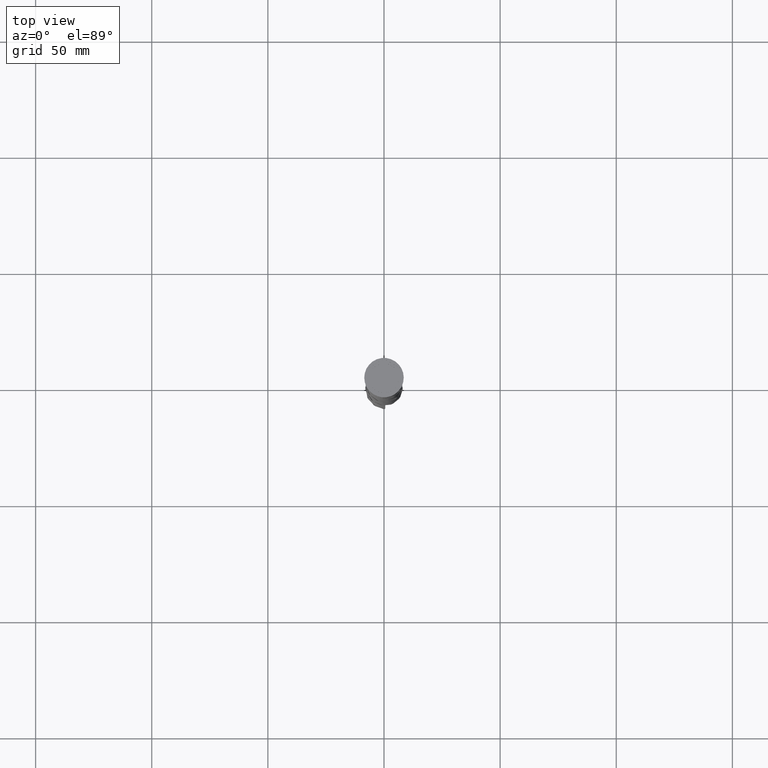
[diagram: clean part render]
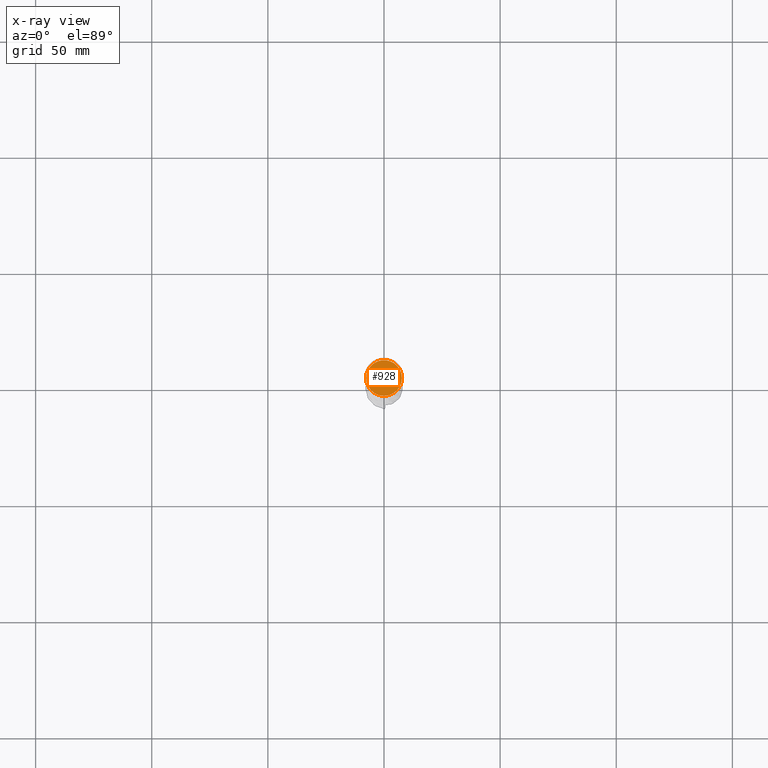
[diagram: x-ray — body ghosted, one internal face saturated and labeled with its STEP entity id]
A machine part, top view, then the same camera in x-ray: the body is ghosted and one INTERNAL B-rep face — a face not visible from any outside direction — is saturated and labeled: STEP entity #928.
In plain terms, the highlighted planar face has unit normal (0, 0, -1).
Its self-contained STEP definition (entity closure, byte-faithful):
#184 = DIRECTION ( 'NONE',  ( -1.000000000000000000, 0.000000000000000000, 0.000000000000000000 ) ) ;
#676 = DIRECTION ( 'NONE',  ( 0.000000000000000000, 0.000000000000000000, -1.000000000000000000 ) ) ;
#761 = CARTESIAN_POINT ( 'NONE',  ( 0.000000000000000000, 0.000000000000000000, -12.00000000000000000 ) ) ;
#807 = DIRECTION ( 'NONE',  ( -1.000000000000000000, 0.000000000000000000, 0.000000000000000000 ) ) ;
#852 = CARTESIAN_POINT ( 'NONE',  ( 0.000000000000000000, 0.000000000000000000, -12.00000000000000000 ) ) ;
#872 = CARTESIAN_POINT ( 'NONE',  ( 7.700000000000001954, 9.613477373306725302E-16, -12.00000000000000000 ) ) ;
#898 = CARTESIAN_POINT ( 'NONE',  ( -7.700000000000001954, 0.000000000000000000, -12.00000000000000000 ) ) ;
#928 = ADVANCED_FACE ( 'NONE', ( #3174 ), #3818, .F. ) ;
#1063 = AXIS2_PLACEMENT_3D ( 'NONE', #3193, #676, #2518 ) ;
#1361 = VERTEX_POINT ( 'NONE', #898 ) ;
#1673 = EDGE_CURVE ( 'NONE', #1361, #4010, #1792, .T. ) ;
#1730 = AXIS2_PLACEMENT_3D ( 'NONE', #761, #3908, #807 ) ;
#1792 = CIRCLE ( 'NONE', #3528, 7.700000000000001954 ) ;
#1940 = EDGE_LOOP ( 'NONE', ( #2470, #3477 ) ) ;
#2378 = DIRECTION ( 'NONE',  ( -0.000000000000000000, -0.000000000000000000, 1.000000000000000000 ) ) ;
#2470 = ORIENTED_EDGE ( 'NONE', *, *, #1673, .T. ) ;
#2518 = DIRECTION ( 'NONE',  ( -1.000000000000000000, 0.000000000000000000, -0.000000000000000000 ) ) ;
#2590 = CIRCLE ( 'NONE', #1730, 7.700000000000001954 ) ;
#3174 = FACE_OUTER_BOUND ( 'NONE', #1940, .T. ) ;
#3193 = CARTESIAN_POINT ( 'NONE',  ( 0.000000000000000000, 0.000000000000000000, -12.00000000000000000 ) ) ;
#3301 = EDGE_CURVE ( 'NONE', #4010, #1361, #2590, .T. ) ;
#3477 = ORIENTED_EDGE ( 'NONE', *, *, #3301, .T. ) ;
#3528 = AXIS2_PLACEMENT_3D ( 'NONE', #852, #2378, #184 ) ;
#3818 = PLANE ( 'NONE',  #1063 ) ;
#3908 = DIRECTION ( 'NONE',  ( -0.000000000000000000, -0.000000000000000000, 1.000000000000000000 ) ) ;
#4010 = VERTEX_POINT ( 'NONE', #872 ) ;